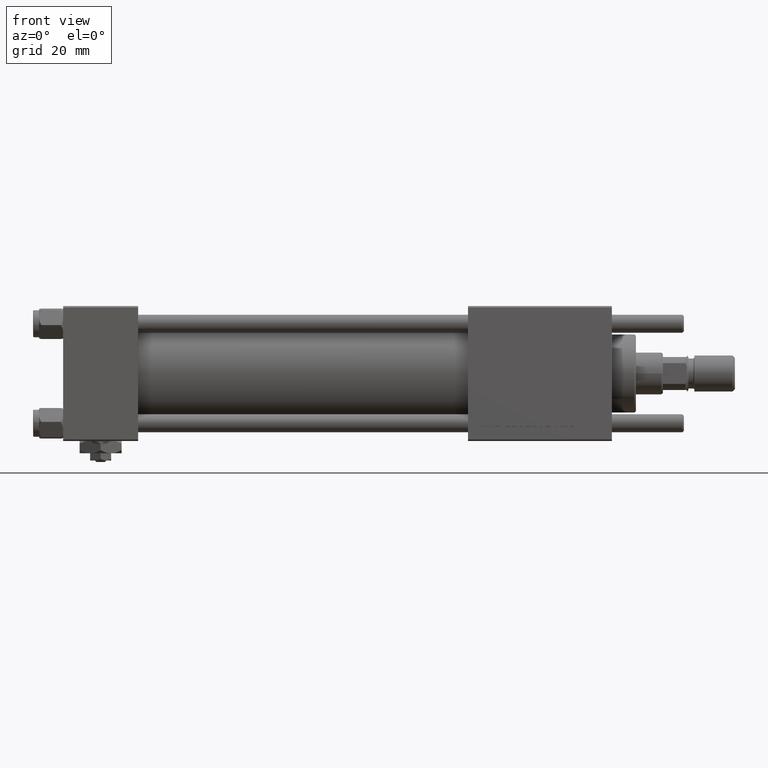
[diagram: clean part render]
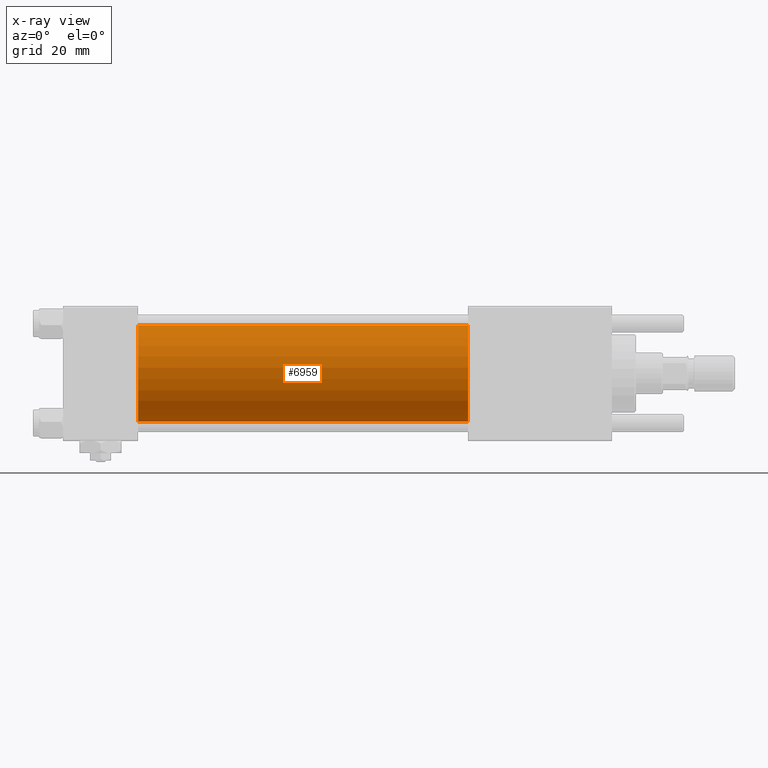
[diagram: x-ray — body ghosted, one internal face saturated and labeled with its STEP entity id]
A machine part, front view, then the same camera in x-ray: the body is ghosted and one INTERNAL B-rep face — a face not visible from any outside direction — is saturated and labeled: STEP entity #6959.
In plain terms, the highlighted cylindrical surface (partial cylindrical patch) has radius 16 mm, axis along (-1, -0, -0).
Its self-contained STEP definition (entity closure, byte-faithful):
#2725 = VECTOR ( 'NONE', #11261, 1000.000000000000000 ) ;
#3951 = AXIS2_PLACEMENT_3D ( 'NONE', #48038, #34612, #52804 ) ;
#4070 = EDGE_CURVE ( 'NONE', #23328, #32539, #26324, .T. ) ;
#4481 = DIRECTION ( 'NONE',  ( 0.000000000000000000, 0.000000000000000000, 1.000000000000000000 ) ) ;
#4776 = CYLINDRICAL_SURFACE ( 'NONE', #34044, 16.00000000000000000 ) ;
#5838 = VERTEX_POINT ( 'NONE', #19737 ) ;
#6172 = EDGE_CURVE ( 'NONE', #32539, #52190, #37883, .T. ) ;
#6308 = DIRECTION ( 'NONE',  ( 0.000000000000000000, 0.000000000000000000, -1.000000000000000000 ) ) ;
#6959 = ADVANCED_FACE ( 'NONE', ( #37008 ), #4776, .F. ) ;
#8964 = CARTESIAN_POINT ( 'NONE',  ( 135.0000000000000000, -2.602085213965210642E-15, 0.000000000000000000 ) ) ;
#11261 = DIRECTION ( 'NONE',  ( -1.000000000000000000, -0.000000000000000000, -0.000000000000000000 ) ) ;
#12381 = ORIENTED_EDGE ( 'NONE', *, *, #25883, .F. ) ;
#16326 = CIRCLE ( 'NONE', #3951, 16.00000000000000000 ) ;
#18753 = VECTOR ( 'NONE', #33407, 1000.000000000000000 ) ;
#19737 = CARTESIAN_POINT ( 'NONE',  ( 25.00000000000000000, -2.602085213965210642E-15, 16.00000000000000000 ) ) ;
#23328 = VERTEX_POINT ( 'NONE', #29635 ) ;
#25883 = EDGE_CURVE ( 'NONE', #5838, #52190, #16326, .T. ) ;
#26324 = CIRCLE ( 'NONE', #50200, 16.00000000000000000 ) ;
#28412 = CARTESIAN_POINT ( 'NONE',  ( 135.0000000000000000, -2.602085213965210642E-15, 0.000000000000000000 ) ) ;
#29635 = CARTESIAN_POINT ( 'NONE',  ( 135.0000000000000000, -2.602085213965210642E-15, 16.00000000000000000 ) ) ;
#32539 = VERTEX_POINT ( 'NONE', #38711 ) ;
#33407 = DIRECTION ( 'NONE',  ( -1.000000000000000000, -0.000000000000000000, -0.000000000000000000 ) ) ;
#33762 = DIRECTION ( 'NONE',  ( 1.000000000000000000, 0.000000000000000000, 0.000000000000000000 ) ) ;
#34044 = AXIS2_PLACEMENT_3D ( 'NONE', #8964, #55198, #4481 ) ;
#34521 = LINE ( 'NONE', #57193, #2725 ) ;
#34612 = DIRECTION ( 'NONE',  ( 1.000000000000000000, 0.000000000000000000, 0.000000000000000000 ) ) ;
#37008 = FACE_OUTER_BOUND ( 'NONE', #52623, .T. ) ;
#37883 = LINE ( 'NONE', #56064, #18753 ) ;
#38711 = CARTESIAN_POINT ( 'NONE',  ( 135.0000000000000000, -6.426503353294456087E-16, -16.00000000000000000 ) ) ;
#39426 = ORIENTED_EDGE ( 'NONE', *, *, #6172, .T. ) ;
#48038 = CARTESIAN_POINT ( 'NONE',  ( 25.00000000000000000, -2.602085213965210642E-15, 0.000000000000000000 ) ) ;
#48913 = ORIENTED_EDGE ( 'NONE', *, *, #4070, .T. ) ;
#50200 = AXIS2_PLACEMENT_3D ( 'NONE', #28412, #33762, #6308 ) ;
#51331 = ORIENTED_EDGE ( 'NONE', *, *, #56076, .F. ) ;
#52190 = VERTEX_POINT ( 'NONE', #54818 ) ;
#52623 = EDGE_LOOP ( 'NONE', ( #48913, #39426, #12381, #51331 ) ) ;
#52804 = DIRECTION ( 'NONE',  ( 0.000000000000000000, 0.000000000000000000, -1.000000000000000000 ) ) ;
#54818 = CARTESIAN_POINT ( 'NONE',  ( 25.00000000000000000, -6.426503353294456087E-16, -16.00000000000000000 ) ) ;
#55198 = DIRECTION ( 'NONE',  ( -1.000000000000000000, -0.000000000000000000, -0.000000000000000000 ) ) ;
#56064 = CARTESIAN_POINT ( 'NONE',  ( 135.0000000000000000, -6.426503353294456087E-16, -16.00000000000000000 ) ) ;
#56076 = EDGE_CURVE ( 'NONE', #23328, #5838, #34521, .T. ) ;
#57193 = CARTESIAN_POINT ( 'NONE',  ( 135.0000000000000000, -2.602085213965210642E-15, 16.00000000000000000 ) ) ;